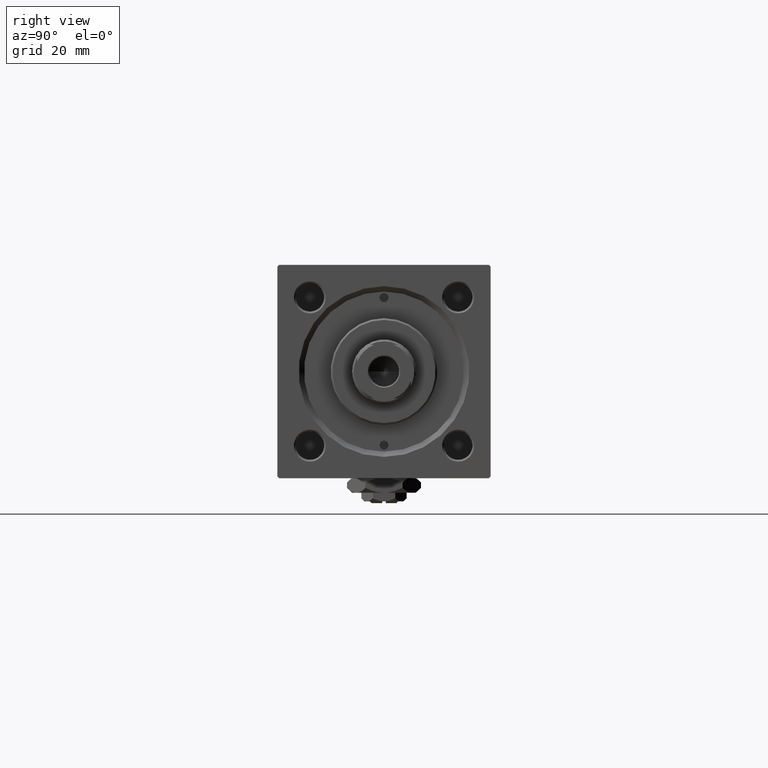
[diagram: clean part render]
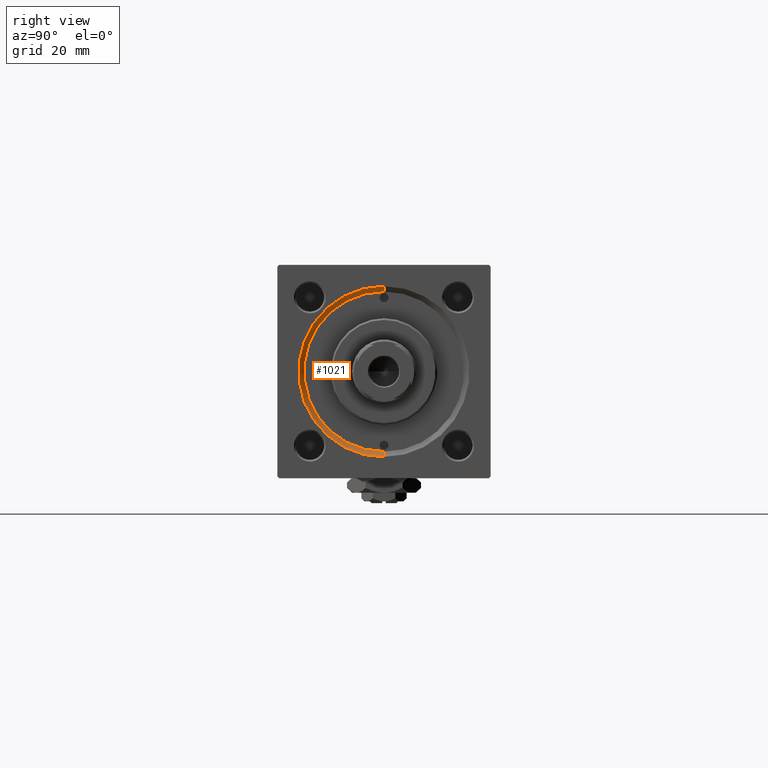
[diagram: same view with one face highlighted and labeled with its STEP entity id]
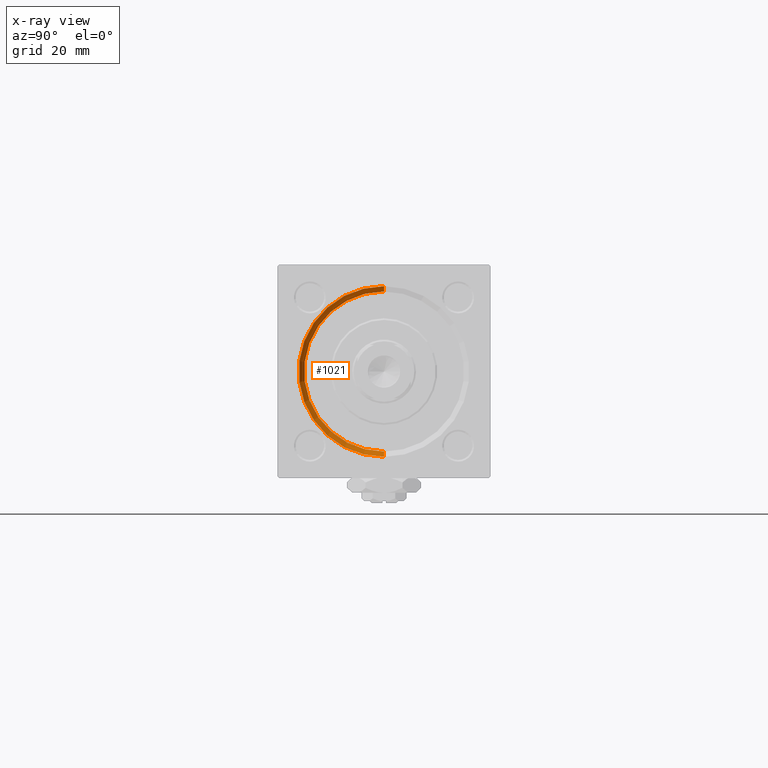
[diagram: x-ray of the same camera — body ghosted, the highlighted face saturated]
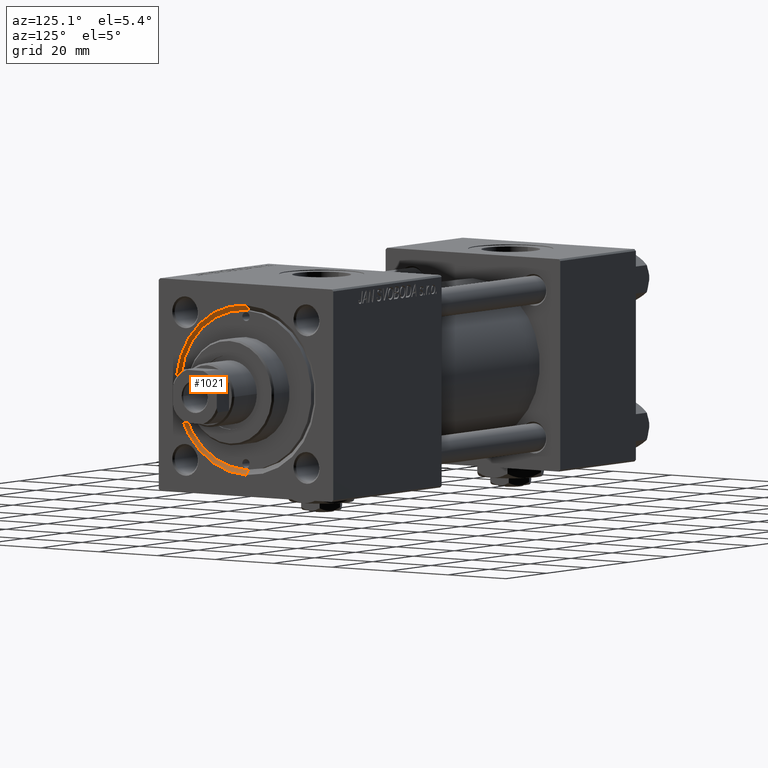
[diagram: same view with one face highlighted and labeled with its STEP entity id]
A machine part, right view. The second image highlights one B-rep face of the part: STEP entity #1021.
The next image is the same camera in x-ray: the body ghosted, the highlighted face saturated — about 0% of this face is hidden behind the body in this view.
A second angle (auxiliary view) of the same face is appended — the face is thin or edge-on in the first view.
In plain terms, the highlighted conical surface has half-angle 45 deg.
Its self-contained STEP definition (entity closure, byte-faithful):
#1021 = ADVANCED_FACE ( 'NONE', ( #34448 ), #21568, .F. ) ;
#1226 = EDGE_CURVE ( 'NONE', #37109, #17136, #46956, .T. ) ;
#1247 = DIRECTION ( 'NONE',  ( 1.000000000000000000, 0.000000000000000000, 0.000000000000000000 ) ) ;
#2272 = DIRECTION ( 'NONE',  ( 0.7071067811865524577, 0.000000000000000000, -0.7071067811865426878 ) ) ;
#2405 = VERTEX_POINT ( 'NONE', #16009 ) ;
#3968 = VECTOR ( 'NONE', #2272, 1000.000000000000000 ) ;
#6856 = EDGE_CURVE ( 'NONE', #17136, #2405, #30384, .T. ) ;
#11105 = CARTESIAN_POINT ( 'NONE',  ( 148.0000000000000000, 2.939152317953652628E-15, 24.00000000000003908 ) ) ;
#12415 = DIRECTION ( 'NONE',  ( 0.000000000000000000, 0.000000000000000000, 1.000000000000000000 ) ) ;
#14297 = DIRECTION ( 'NONE',  ( 0.000000000000000000, 0.000000000000000000, -1.000000000000000000 ) ) ;
#15553 = EDGE_CURVE ( 'NONE', #37109, #40906, #37471, .T. ) ;
#16009 = CARTESIAN_POINT ( 'NONE',  ( 148.0000000000000000, 0.000000000000000000, -24.00000000000003908 ) ) ;
#17136 = VERTEX_POINT ( 'NONE', #30326 ) ;
#17609 = ORIENTED_EDGE ( 'NONE', *, *, #1226, .F. ) ;
#19527 = EDGE_LOOP ( 'NONE', ( #17609, #25642, #24369, #32675 ) ) ;
#20369 = CARTESIAN_POINT ( 'NONE',  ( 146.4999999999999432, 0.000000000000000000, 0.000000000000000000 ) ) ;
#21568 = CONICAL_SURFACE ( 'NONE', #39349, 22.50000000000000355, 0.7853981633974415066 ) ;
#23753 = CARTESIAN_POINT ( 'NONE',  ( 148.0000000000000000, 0.000000000000000000, 0.000000000000000000 ) ) ;
#24097 = AXIS2_PLACEMENT_3D ( 'NONE', #20369, #1247, #12415 ) ;
#24369 = ORIENTED_EDGE ( 'NONE', *, *, #41829, .F. ) ;
#25642 = ORIENTED_EDGE ( 'NONE', *, *, #15553, .T. ) ;
#27682 = AXIS2_PLACEMENT_3D ( 'NONE', #23753, #28532, #35955 ) ;
#28532 = DIRECTION ( 'NONE',  ( -1.000000000000000000, 0.000000000000000000, -0.000000000000000000 ) ) ;
#28598 = VECTOR ( 'NONE', #29777, 1000.000000000000000 ) ;
#29777 = DIRECTION ( 'NONE',  ( 0.7071067811865524577, 8.659560562354874926E-17, 0.7071067811865426878 ) ) ;
#30326 = CARTESIAN_POINT ( 'NONE',  ( 146.4999999999999432, 0.000000000000000000, -22.50000000000000355 ) ) ;
#30384 = LINE ( 'NONE', #51023, #3968 ) ;
#32675 = ORIENTED_EDGE ( 'NONE', *, *, #6856, .F. ) ;
#34448 = FACE_OUTER_BOUND ( 'NONE', #19527, .T. ) ;
#34719 = DIRECTION ( 'NONE',  ( 1.000000000000000000, 0.000000000000000000, 0.000000000000000000 ) ) ;
#35322 = CIRCLE ( 'NONE', #27682, 24.00000000000003908 ) ;
#35903 = CARTESIAN_POINT ( 'NONE',  ( 146.4999999999999432, 2.755455298081545172E-15, 22.50000000000000355 ) ) ;
#35955 = DIRECTION ( 'NONE',  ( 0.000000000000000000, 0.000000000000000000, 1.000000000000000000 ) ) ;
#37109 = VERTEX_POINT ( 'NONE', #35903 ) ;
#37471 = LINE ( 'NONE', #45699, #28598 ) ;
#39349 = AXIS2_PLACEMENT_3D ( 'NONE', #50603, #34719, #14297 ) ;
#40906 = VERTEX_POINT ( 'NONE', #11105 ) ;
#41829 = EDGE_CURVE ( 'NONE', #2405, #40906, #35322, .T. ) ;
#45699 = CARTESIAN_POINT ( 'NONE',  ( 146.4999999999999432, 2.755455298081545172E-15, 22.50000000000000355 ) ) ;
#46956 = CIRCLE ( 'NONE', #24097, 22.50000000000000355 ) ;
#50603 = CARTESIAN_POINT ( 'NONE',  ( 146.4999999999999432, 0.000000000000000000, 0.000000000000000000 ) ) ;
#51023 = CARTESIAN_POINT ( 'NONE',  ( 146.4999999999999432, 0.000000000000000000, -22.50000000000000355 ) ) ;